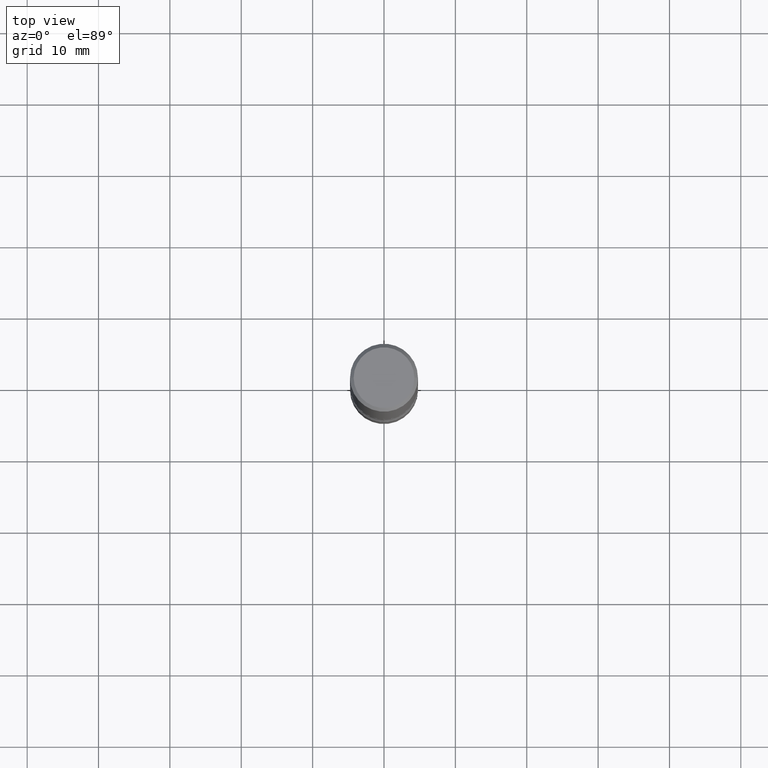
[diagram: clean part render]
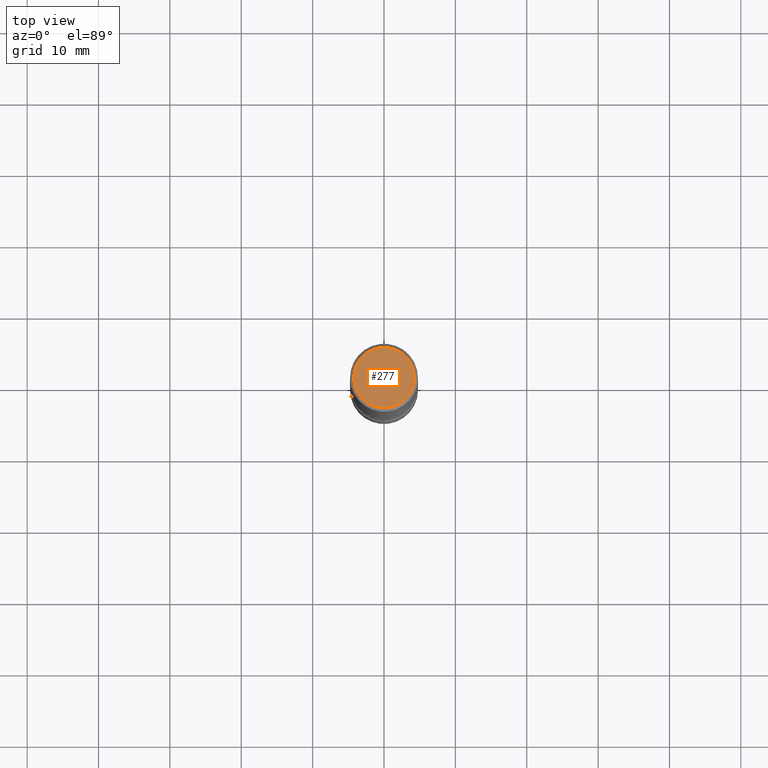
[diagram: same view with one face highlighted and labeled with its STEP entity id]
A machine part, top view. The second image highlights one B-rep face of the part: STEP entity #277.
In plain terms, the highlighted planar face has unit normal (0, -0, -1).
Its self-contained STEP definition (entity closure, byte-faithful):
#19 = AXIS2_PLACEMENT_3D ( 'NONE', #91, #222, #100 ) ;
#30 = VERTEX_POINT ( 'NONE', #78 ) ;
#31 = EDGE_CURVE ( 'NONE', #30, #53, #289, .T. ) ;
#53 = VERTEX_POINT ( 'NONE', #483 ) ;
#78 = CARTESIAN_POINT ( 'NONE',  ( -0.1674999999999998990, 1.204561061900880061E-15, -8.301862719484106184E-30 ) ) ;
#91 = CARTESIAN_POINT ( 'NONE',  ( 0.000000000000000000, 0.000000000000000000, 0.000000000000000000 ) ) ;
#100 = DIRECTION ( 'NONE',  ( 1.000000000000000000, -6.982962677686265922E-15, 4.876176775795935793E-29 ) ) ;
#117 = CARTESIAN_POINT ( 'NONE',  ( 1.169646248512448806E-15, 0.1674999999999998990, -5.848231242562264739E-16 ) ) ;
#158 = DIRECTION ( 'NONE',  ( -2.445468806185136597E-29, 3.491481338843145583E-15, 1.000000000000000000 ) ) ;
#171 = CIRCLE ( 'NONE', #487, 0.1674999999999998990 ) ;
#181 = EDGE_CURVE ( 'NONE', #53, #30, #171, .T. ) ;
#207 = CARTESIAN_POINT ( 'NONE',  ( 0.000000000000000000, 0.000000000000000000, 0.000000000000000000 ) ) ;
#222 = DIRECTION ( 'NONE',  ( -2.445468806185136597E-29, 3.491481338843145583E-15, 1.000000000000000000 ) ) ;
#234 = ORIENTED_EDGE ( 'NONE', *, *, #31, .T. ) ;
#239 = EDGE_LOOP ( 'NONE', ( #234, #364 ) ) ;
#277 = ADVANCED_FACE ( 'NONE', ( #293 ), #459, .F. ) ;
#284 = DIRECTION ( 'NONE',  ( 1.000000000000000000, -6.982962677686265922E-15, 4.876176775795935793E-29 ) ) ;
#289 = CIRCLE ( 'NONE', #19, 0.1674999999999998990 ) ;
#293 = FACE_OUTER_BOUND ( 'NONE', #239, .T. ) ;
#295 = DIRECTION ( 'NONE',  ( 2.438088387897960049E-29, -3.491481338843145188E-15, -1.000000000000000000 ) ) ;
#359 = AXIS2_PLACEMENT_3D ( 'NONE', #117, #295, #461 ) ;
#364 = ORIENTED_EDGE ( 'NONE', *, *, #181, .T. ) ;
#459 = PLANE ( 'NONE',  #359 ) ;
#461 = DIRECTION ( 'NONE',  ( -1.000000000000000000, 6.982962677686265922E-15, -4.876176775795935793E-29 ) ) ;
#483 = CARTESIAN_POINT ( 'NONE',  ( 0.1674999999999998990, -1.252653207992877500E-15, 8.469775550109235181E-30 ) ) ;
#487 = AXIS2_PLACEMENT_3D ( 'NONE', #207, #158, #284 ) ;